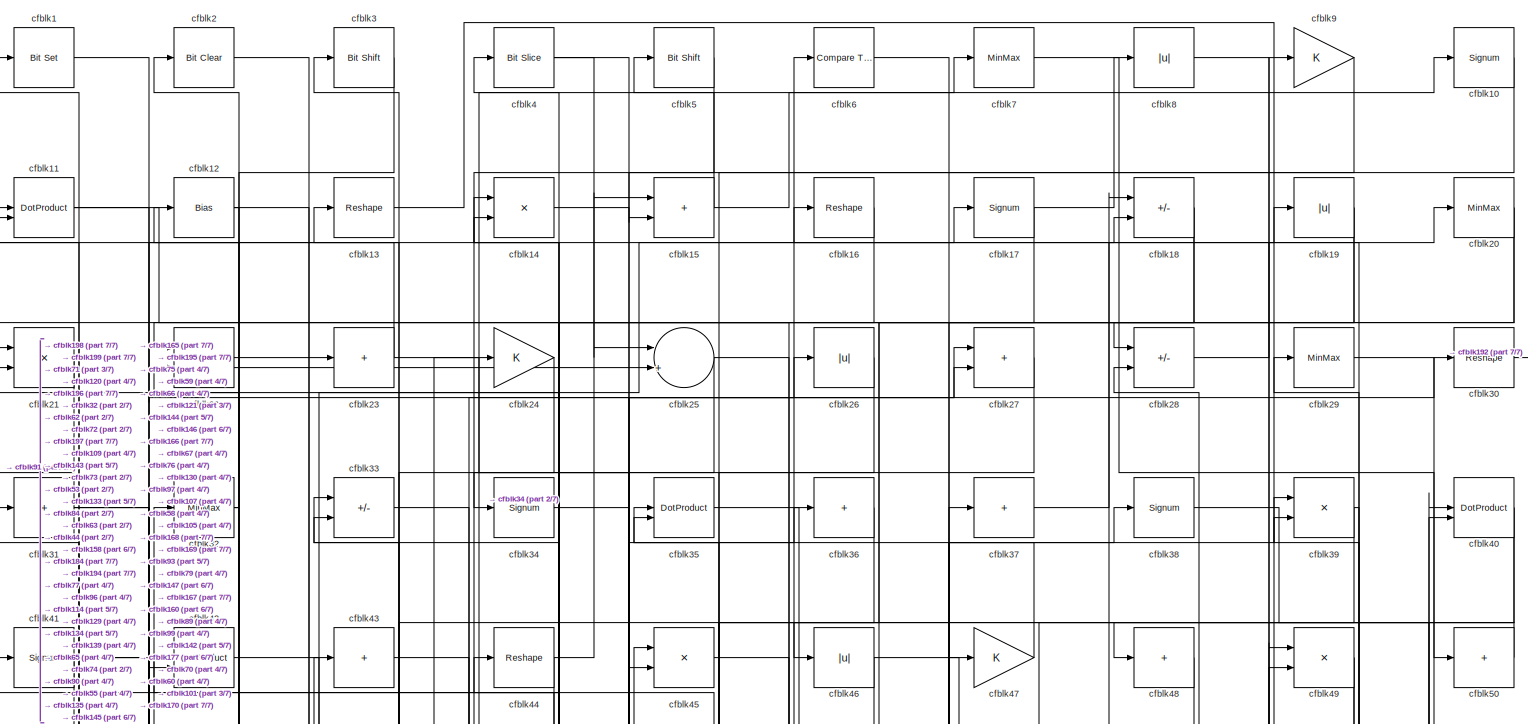
[diagram: root canvas - part 1/7, full width, top band]
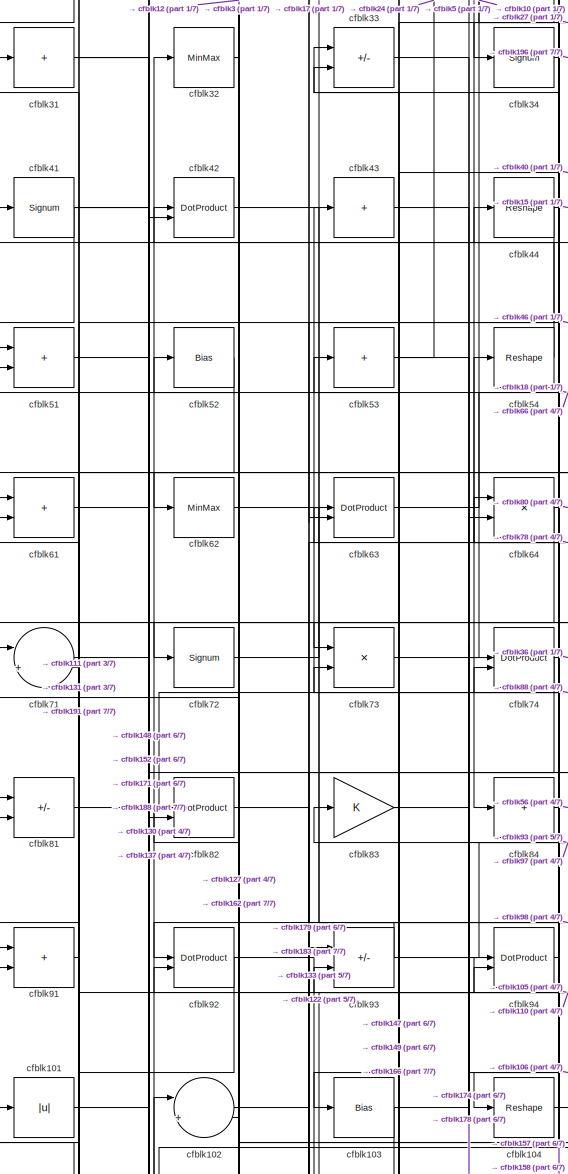
[diagram: root canvas - part 2/7, middle left region]
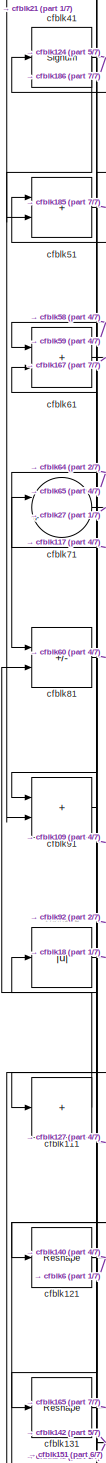
[diagram: root canvas - part 3/7, middle left region]
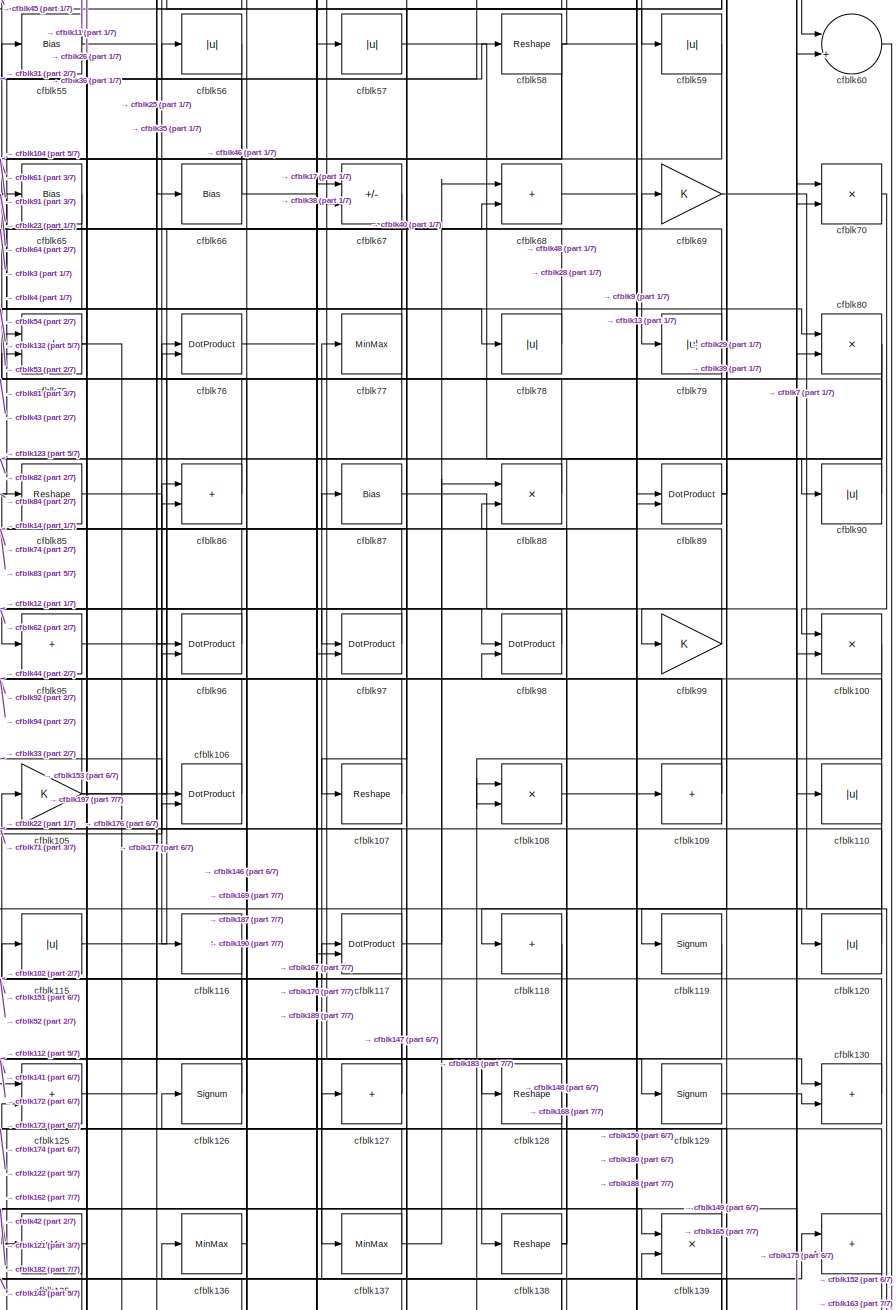
[diagram: root canvas - part 4/7, middle right region]
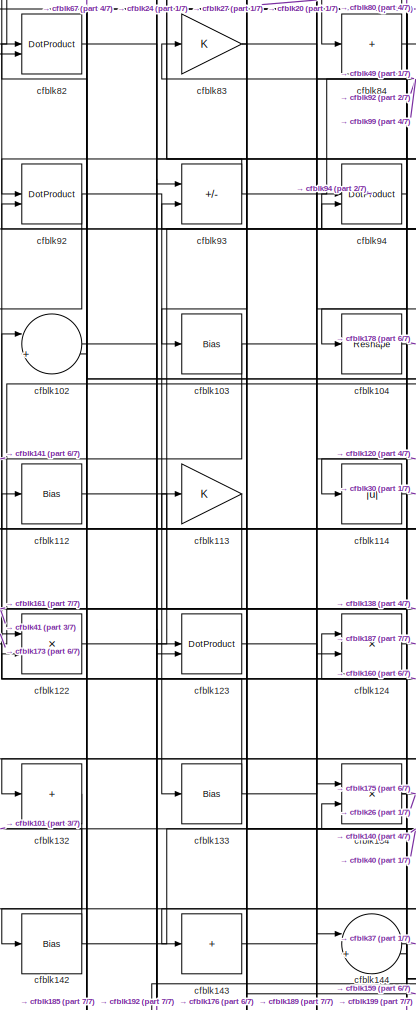
[diagram: root canvas - part 5/7, middle left region]
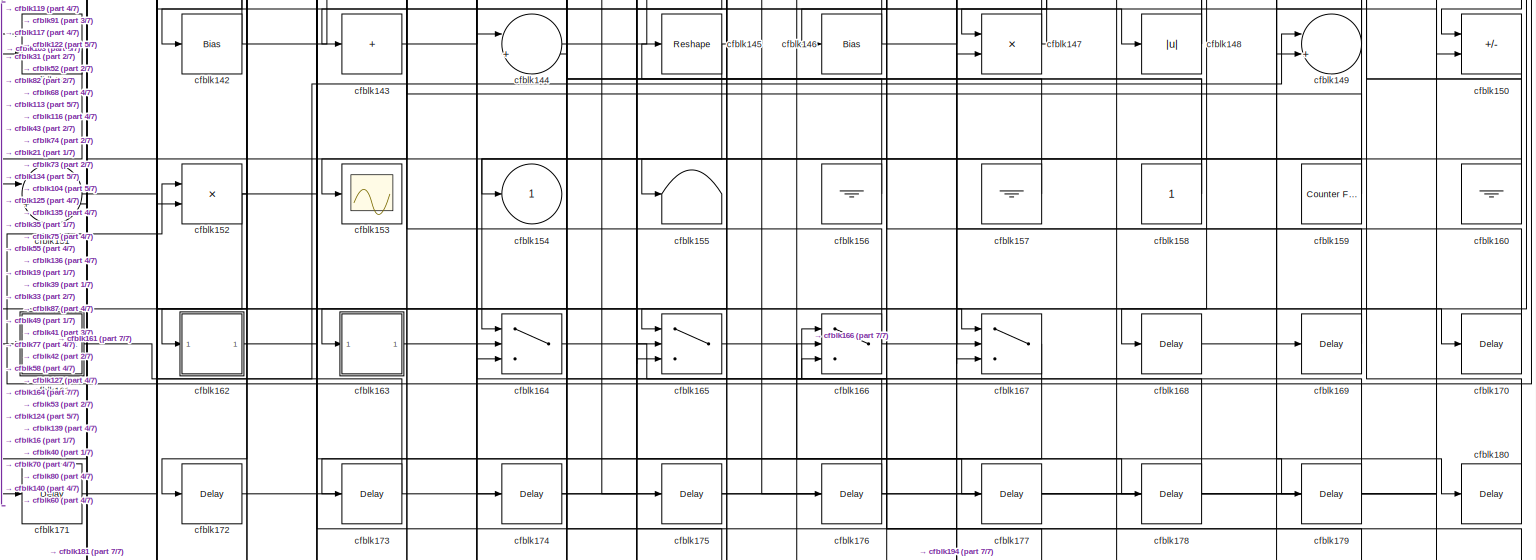
[diagram: root canvas - part 6/7, full width, bottom band]
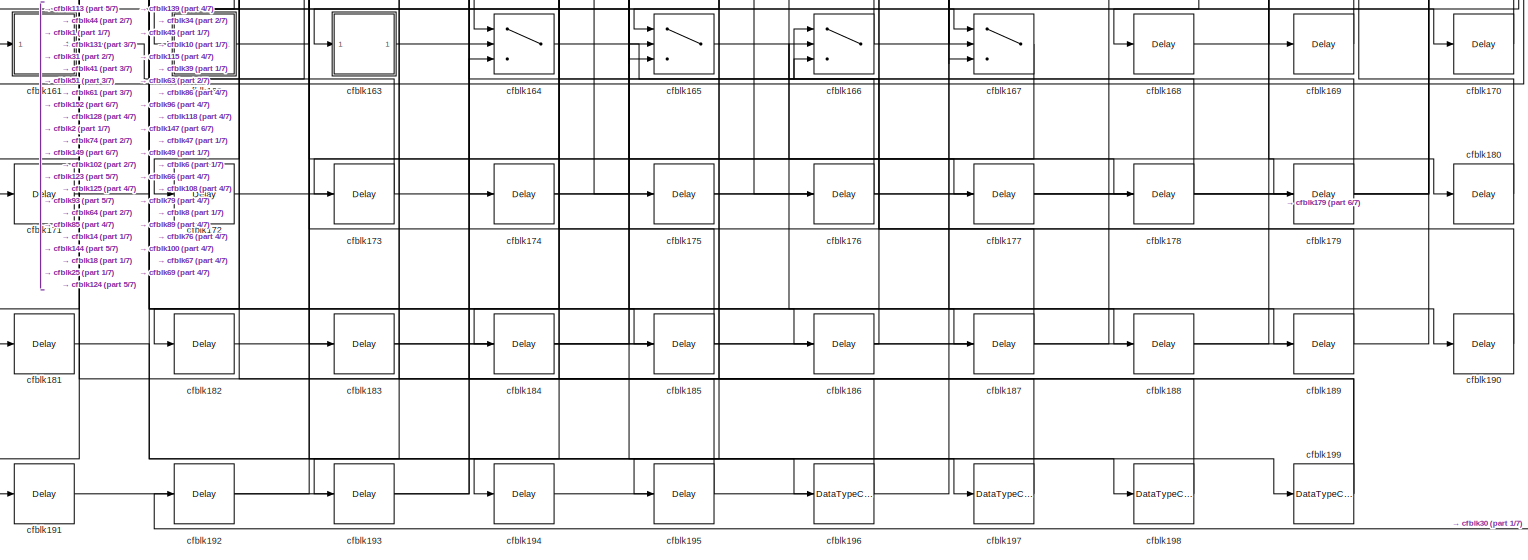
[diagram: root canvas - part 7/7, full width, bottom band]
MODEL slx_b11545c98bc6
KIND model
CONFIG AbsTol = auto
CONFIG EnableMultiTasking = off
CONFIG FixedStep = auto
CONFIG MaxStep = auto
CONFIG MinStep = auto
CONFIG RelTol = 1e-3
CONFIG SampleTimeConstraint = Unconstrained
CONFIG SolverName = VariableStepAuto
CONFIG StartTime = 0.0
CONFIG StopTime = 10.0
BLOCK [Reference] cfblk1  REF=simulink/Logic and Bit
Operations/Bit Set
  LibrarySourceBlock = hdlsllib/Logic and Bit\nOperations/Bit Set
  SourceBlock = simulink/Logic and Bit\nOperations/Bit Set
  SourceType = Bit Set
BLOCK [Signum] cfblk10
BLOCK [Product] cfblk100
  Inputs = */
  RndMeth = Zero
  SaturateOnIntegerOverflow = on
BLOCK [Abs] cfblk101
  SaturateOnIntegerOverflow = off
BLOCK [Sum] cfblk102
  Inputs = |++
BLOCK [Bias] cfblk103
  Bias = 0.0
  SaturateOnIntegerOverflow = off
BLOCK [Reshape] cfblk104
BLOCK [Gain] cfblk105
BLOCK [DotProduct] cfblk106
  OutDataTypeStr = Inherit: Inherit via internal rule
BLOCK [Reshape] cfblk107
BLOCK [Product] cfblk108
  Inputs = */
  RndMeth = Zero
  SaturateOnIntegerOverflow = on
BLOCK [Sum] cfblk109
  IconShape = rectangular
  Inputs = +
BLOCK [DotProduct] cfblk11
  OutDataTypeStr = Inherit: Inherit via internal rule
BLOCK [Abs] cfblk110
  SaturateOnIntegerOverflow = off
BLOCK [Sum] cfblk111
  IconShape = rectangular
  Inputs = +
BLOCK [Bias] cfblk112
  Bias = 0.0
  SaturateOnIntegerOverflow = off
BLOCK [Gain] cfblk113
BLOCK [Abs] cfblk114
  SaturateOnIntegerOverflow = off
BLOCK [Abs] cfblk115
  SaturateOnIntegerOverflow = off
BLOCK [Sum] cfblk116
  IconShape = rectangular
  Inputs = +
BLOCK [DotProduct] cfblk117
  OutDataTypeStr = Inherit: Inherit via internal rule
BLOCK [Sum] cfblk118
  IconShape = rectangular
  Inputs = +
BLOCK [Signum] cfblk119
BLOCK [Bias] cfblk12
  Bias = 0.0
  SaturateOnIntegerOverflow = off
BLOCK [Abs] cfblk120
  SaturateOnIntegerOverflow = off
BLOCK [Reshape] cfblk121
BLOCK [Product] cfblk122
  Inputs = */
  RndMeth = Zero
  SaturateOnIntegerOverflow = on
BLOCK [DotProduct] cfblk123
  OutDataTypeStr = Inherit: Inherit via internal rule
BLOCK [Product] cfblk124
  Inputs = */
  RndMeth = Zero
  SaturateOnIntegerOverflow = on
BLOCK [Sum] cfblk125
  IconShape = rectangular
BLOCK [Signum] cfblk126
BLOCK [Sum] cfblk127
  IconShape = rectangular
  Inputs = +
BLOCK [Reshape] cfblk128
BLOCK [Signum] cfblk129
BLOCK [Reshape] cfblk13
BLOCK [Sum] cfblk130
  IconShape = rectangular
BLOCK [Reshape] cfblk131
BLOCK [Sum] cfblk132
  IconShape = rectangular
  Inputs = +
BLOCK [Bias] cfblk133
  Bias = 0.0
  SaturateOnIntegerOverflow = off
BLOCK [Product] cfblk134
  Inputs = */
  RndMeth = Zero
  SaturateOnIntegerOverflow = on
BLOCK [MinMax] cfblk135
BLOCK [MinMax] cfblk136
BLOCK [MinMax] cfblk137
BLOCK [Reshape] cfblk138
BLOCK [Product] cfblk139
  Inputs = */
  RndMeth = Zero
  SaturateOnIntegerOverflow = on
BLOCK [Product] cfblk14
  Inputs = */
  RndMeth = Zero
  SaturateOnIntegerOverflow = on
BLOCK [Sum] cfblk140
  IconShape = rectangular
BLOCK [Product] cfblk141
  Inputs = */
  RndMeth = Zero
  SaturateOnIntegerOverflow = on
BLOCK [Bias] cfblk142
  Bias = 0.0
  SaturateOnIntegerOverflow = off
BLOCK [Sum] cfblk143
  IconShape = rectangular
  Inputs = +
BLOCK [Sum] cfblk144
  Inputs = |++
BLOCK [Reshape] cfblk145
BLOCK [Bias] cfblk146
  Bias = 0.0
  SaturateOnIntegerOverflow = off
BLOCK [Product] cfblk147
  Inputs = */
  RndMeth = Zero
  SaturateOnIntegerOverflow = on
BLOCK [Abs] cfblk148
  SaturateOnIntegerOverflow = off
BLOCK [Sum] cfblk149
  Inputs = |++
BLOCK [Sum] cfblk15
  IconShape = rectangular
BLOCK [Sum] cfblk150
  IconShape = rectangular
  Inputs = +-
BLOCK [Sum] cfblk151
  Inputs = |++
BLOCK [Product] cfblk152
  Inputs = */
  RndMeth = Zero
  SaturateOnIntegerOverflow = on
BLOCK [Scope] cfblk153
  Floating = off
  NumInputPorts = 1
  ScopeSpecificationString = Simulink.scopes.TimeScopeBlockCfg('CurrentConfiguration', extmgr.ConfigurationSet(extmgr.Configuration('Core','General UI',true),extmgr.Configuration('Core','Source UI',true),extmgr.Configuration('Sources','WiredSimulink',true,'DataLoggingVariableName','ScopeData2','DataLoggingSaveFormat','Array','DataLoggingLimitDataPoints',true,'DataLoggingDecimation','1'),extmgr.Configuration('Visuals','Time Do...<+868ch>
BLOCK [Outport] cfblk154
  VectorParamsAs1DForOutWhenUnconnected = off
BLOCK [Terminator] cfblk155
BLOCK [Ground] cfblk156
BLOCK [Ground] cfblk157
BLOCK [Constant] cfblk158
  SampleTime = -1
BLOCK [Reference] cfblk159  REF=hdlsllib/Sources/Counter
Free-Running
  SourceBlock = hdlsllib/Sources/Counter\nFree-Running
  SourceType = Counter Free-Running
BLOCK [Reshape] cfblk16
BLOCK [Ground] cfblk160
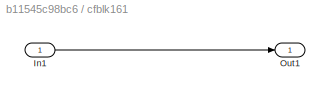
BLOCK [SubSystem] cfblk161
  LibrarySourceBlock = hdlsllib/Ports &\nSubsystems/Subsystem
BLOCK [Inport] cfblk161/In1
BLOCK [Outport] cfblk161/Out1
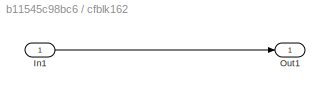
BLOCK [SubSystem] cfblk162
  LibrarySourceBlock = hdlsllib/Ports &\nSubsystems/Subsystem
BLOCK [Inport] cfblk162/In1
BLOCK [Outport] cfblk162/Out1
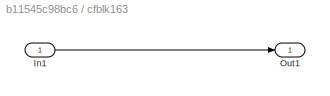
BLOCK [SubSystem] cfblk163
  LibrarySourceBlock = hdlsllib/Ports &\nSubsystems/Subsystem
BLOCK [Inport] cfblk163/In1
BLOCK [Outport] cfblk163/Out1
BLOCK [Switch] cfblk164
  InputSameDT = off
  SaturateOnIntegerOverflow = off
BLOCK [Switch] cfblk165
  InputSameDT = off
  SaturateOnIntegerOverflow = off
BLOCK [Switch] cfblk166
  InputSameDT = off
  SaturateOnIntegerOverflow = off
BLOCK [Switch] cfblk167
  InputSameDT = off
  SaturateOnIntegerOverflow = off
BLOCK [Delay] cfblk168
  InputPortMap = u0
  SampleTime = 1
BLOCK [Delay] cfblk169
  InputPortMap = u0
  SampleTime = 1
BLOCK [Signum] cfblk17
BLOCK [Delay] cfblk170
  InputPortMap = u0
  SampleTime = 1
BLOCK [Delay] cfblk171
  InputPortMap = u0
  SampleTime = 1
BLOCK [Delay] cfblk172
  InputPortMap = u0
  SampleTime = 1
BLOCK [Delay] cfblk173
  InputPortMap = u0
  SampleTime = 1
BLOCK [Delay] cfblk174
  InputPortMap = u0
  SampleTime = 1
BLOCK [Delay] cfblk175
  InputPortMap = u0
  SampleTime = 1
BLOCK [Delay] cfblk176
  InputPortMap = u0
  SampleTime = 1
BLOCK [Delay] cfblk177
  InputPortMap = u0
  SampleTime = 1
BLOCK [Delay] cfblk178
  InputPortMap = u0
  SampleTime = 1
BLOCK [Delay] cfblk179
  InputPortMap = u0
  SampleTime = 1
BLOCK [Sum] cfblk18
  IconShape = rectangular
  Inputs = +-
BLOCK [Delay] cfblk180
  InputPortMap = u0
  SampleTime = 1
BLOCK [Delay] cfblk181
  InputPortMap = u0
  SampleTime = 1
BLOCK [Delay] cfblk182
  InputPortMap = u0
  SampleTime = 1
BLOCK [Delay] cfblk183
  InputPortMap = u0
  SampleTime = 1
BLOCK [Delay] cfblk184
  InputPortMap = u0
  SampleTime = 1
BLOCK [Delay] cfblk185
  InputPortMap = u0
  SampleTime = 1
BLOCK [Delay] cfblk186
  InputPortMap = u0
  SampleTime = 1
BLOCK [Delay] cfblk187
  InputPortMap = u0
  SampleTime = 1
BLOCK [Delay] cfblk188
  InputPortMap = u0
  SampleTime = 1
BLOCK [Delay] cfblk189
  InputPortMap = u0
  SampleTime = 1
BLOCK [Abs] cfblk19
  SaturateOnIntegerOverflow = off
BLOCK [Delay] cfblk190
  InputPortMap = u0
  SampleTime = 1
BLOCK [Delay] cfblk191
  InputPortMap = u0
  SampleTime = 1
BLOCK [Delay] cfblk192
  InputPortMap = u0
  SampleTime = 1
BLOCK [Delay] cfblk193
  InputPortMap = u0
  SampleTime = 1
BLOCK [Delay] cfblk194
  InputPortMap = u0
  SampleTime = 1
BLOCK [Delay] cfblk195
  InputPortMap = u0
  SampleTime = 1
BLOCK [DataTypeConversion] cfblk196
  OutDataTypeStr = boolean
  RndMeth = Floor
  SaturateOnIntegerOverflow = off
BLOCK [DataTypeConversion] cfblk197
  OutDataTypeStr = uint8
  RndMeth = Floor
  SaturateOnIntegerOverflow = off
BLOCK [DataTypeConversion] cfblk198
  OutDataTypeStr = boolean
  RndMeth = Floor
  SaturateOnIntegerOverflow = off
BLOCK [DataTypeConversion] cfblk199
  RndMeth = Floor
  SaturateOnIntegerOverflow = off
BLOCK [Reference] cfblk2  REF=simulink/Logic and Bit
Operations/Bit Clear
  LibrarySourceBlock = hdlsllib/Logic and Bit\nOperations/Bit Clear
  SourceBlock = simulink/Logic and Bit\nOperations/Bit Clear
  SourceType = Bit Clear
BLOCK [MinMax] cfblk20
BLOCK [Product] cfblk21
  Inputs = */
  RndMeth = Zero
  SaturateOnIntegerOverflow = on
BLOCK [Sum] cfblk22
  IconShape = rectangular
BLOCK [Sum] cfblk23
  IconShape = rectangular
  Inputs = +
BLOCK [Gain] cfblk24
BLOCK [Sum] cfblk25
  Inputs = |++
BLOCK [Abs] cfblk26
  SaturateOnIntegerOverflow = off
BLOCK [Sum] cfblk27
  IconShape = rectangular
BLOCK [Sum] cfblk28
  IconShape = rectangular
  Inputs = +-
BLOCK [MinMax] cfblk29
BLOCK [Reference] cfblk3  REF=hdlsllib/Logic and Bit
Operations/Bit Shift
  SourceBlock = hdlsllib/Logic and Bit\nOperations/Bit Shift
  SourceType = Bit Shift
BLOCK [Reshape] cfblk30
BLOCK [Sum] cfblk31
  IconShape = rectangular
  Inputs = +
BLOCK [MinMax] cfblk32
BLOCK [Sum] cfblk33
  IconShape = rectangular
  Inputs = +-
BLOCK [Signum] cfblk34
BLOCK [DotProduct] cfblk35
  OutDataTypeStr = Inherit: Inherit via internal rule
BLOCK [Sum] cfblk36
  IconShape = rectangular
  Inputs = +
BLOCK [Sum] cfblk37
  IconShape = rectangular
  Inputs = +
BLOCK [Signum] cfblk38
BLOCK [Product] cfblk39
  Inputs = */
  RndMeth = Zero
  SaturateOnIntegerOverflow = on
BLOCK [Reference] cfblk4  REF=hdlsllib/Logic and Bit
Operations/Bit Slice
  SourceBlock = hdlsllib/Logic and Bit\nOperations/Bit Slice
  SourceType = Bit Slice
BLOCK [DotProduct] cfblk40
  OutDataTypeStr = Inherit: Inherit via internal rule
BLOCK [Signum] cfblk41
BLOCK [DotProduct] cfblk42
  OutDataTypeStr = Inherit: Inherit via internal rule
BLOCK [Sum] cfblk43
  IconShape = rectangular
  Inputs = +
BLOCK [Reshape] cfblk44
BLOCK [Product] cfblk45
  Inputs = */
  RndMeth = Zero
  SaturateOnIntegerOverflow = on
BLOCK [Abs] cfblk46
  SaturateOnIntegerOverflow = off
BLOCK [Gain] cfblk47
BLOCK [Sum] cfblk48
  IconShape = rectangular
  Inputs = +
BLOCK [Product] cfblk49
  Inputs = */
  RndMeth = Zero
  SaturateOnIntegerOverflow = on
BLOCK [Reference] cfblk5  REF=hdlsllib/Logic and Bit
Operations/Bit Shift
  SourceBlock = hdlsllib/Logic and Bit\nOperations/Bit Shift
  SourceType = Bit Shift
BLOCK [Sum] cfblk50
  IconShape = rectangular
  Inputs = +
BLOCK [Sum] cfblk51
  IconShape = rectangular
BLOCK [Bias] cfblk52
  Bias = 0.0
  SaturateOnIntegerOverflow = off
BLOCK [Sum] cfblk53
  IconShape = rectangular
  Inputs = +
BLOCK [Reshape] cfblk54
BLOCK [Bias] cfblk55
  Bias = 0.0
  SaturateOnIntegerOverflow = off
BLOCK [Abs] cfblk56
  SaturateOnIntegerOverflow = off
BLOCK [Abs] cfblk57
  SaturateOnIntegerOverflow = off
BLOCK [Reshape] cfblk58
BLOCK [Abs] cfblk59
  SaturateOnIntegerOverflow = off
BLOCK [Reference] cfblk6  REF=hdlsllib/Logic and Bit
Operations/Compare
To Constant
  SourceBlock = hdlsllib/Logic and Bit\nOperations/Compare\nTo Constant
  SourceType = Compare To Constant
BLOCK [Sum] cfblk60
  Inputs = |++
BLOCK [Sum] cfblk61
  IconShape = rectangular
BLOCK [MinMax] cfblk62
BLOCK [DotProduct] cfblk63
  OutDataTypeStr = Inherit: Inherit via internal rule
BLOCK [Product] cfblk64
  Inputs = */
  RndMeth = Zero
  SaturateOnIntegerOverflow = on
BLOCK [Bias] cfblk65
  Bias = 0.0
  SaturateOnIntegerOverflow = off
BLOCK [Bias] cfblk66
  Bias = 0.0
  SaturateOnIntegerOverflow = off
BLOCK [Sum] cfblk67
  IconShape = rectangular
  Inputs = +-
BLOCK [Sum] cfblk68
  IconShape = rectangular
BLOCK [Gain] cfblk69
BLOCK [MinMax] cfblk7
BLOCK [Product] cfblk70
  Inputs = */
  RndMeth = Zero
  SaturateOnIntegerOverflow = on
BLOCK [Sum] cfblk71
  Inputs = |++
BLOCK [Signum] cfblk72
BLOCK [Product] cfblk73
  Inputs = */
  RndMeth = Zero
  SaturateOnIntegerOverflow = on
BLOCK [DotProduct] cfblk74
  OutDataTypeStr = Inherit: Inherit via internal rule
BLOCK [Sum] cfblk75
  IconShape = rectangular
  Inputs = +-
BLOCK [DotProduct] cfblk76
  OutDataTypeStr = Inherit: Inherit via internal rule
BLOCK [MinMax] cfblk77
BLOCK [Abs] cfblk78
  SaturateOnIntegerOverflow = off
BLOCK [Abs] cfblk79
  SaturateOnIntegerOverflow = off
BLOCK [Abs] cfblk8
  SaturateOnIntegerOverflow = off
BLOCK [Product] cfblk80
  Inputs = */
  RndMeth = Zero
  SaturateOnIntegerOverflow = on
BLOCK [Sum] cfblk81
  IconShape = rectangular
  Inputs = +-
BLOCK [DotProduct] cfblk82
  OutDataTypeStr = Inherit: Inherit via internal rule
BLOCK [Gain] cfblk83
BLOCK [Sum] cfblk84
  IconShape = rectangular
  Inputs = +
BLOCK [Reshape] cfblk85
BLOCK [Sum] cfblk86
  IconShape = rectangular
BLOCK [Bias] cfblk87
  Bias = 0.0
  SaturateOnIntegerOverflow = off
BLOCK [Product] cfblk88
  Inputs = */
  RndMeth = Zero
  SaturateOnIntegerOverflow = on
BLOCK [DotProduct] cfblk89
  OutDataTypeStr = Inherit: Inherit via internal rule
BLOCK [Gain] cfblk9
BLOCK [Abs] cfblk90
  SaturateOnIntegerOverflow = off
BLOCK [Sum] cfblk91
  IconShape = rectangular
BLOCK [DotProduct] cfblk92
  OutDataTypeStr = Inherit: Inherit via internal rule
BLOCK [Sum] cfblk93
  IconShape = rectangular
  Inputs = +-
BLOCK [DotProduct] cfblk94
  OutDataTypeStr = Inherit: Inherit via internal rule
BLOCK [Sum] cfblk95
  IconShape = rectangular
  Inputs = +
BLOCK [DotProduct] cfblk96
  OutDataTypeStr = Inherit: Inherit via internal rule
BLOCK [DotProduct] cfblk97
  OutDataTypeStr = Inherit: Inherit via internal rule
BLOCK [DotProduct] cfblk98
  OutDataTypeStr = Inherit: Inherit via internal rule
BLOCK [Gain] cfblk99
LINE cfblk100:1 -> cfblk108:2
LINE cfblk101:1 -> cfblk18:2
LINE cfblk102:1 -> cfblk183:1
NET cfblk103:1 -> cfblk134:1, cfblk141:2
LINE cfblk104:1 -> cfblk178:1
NET cfblk105:1 -> cfblk128:1, cfblk92:2, cfblk9:1
LINE cfblk106:1 -> cfblk44:1
LINE cfblk107:1 -> cfblk86:1
LINE cfblk108:1 -> cfblk109:1
NET cfblk109:1 -> cfblk13:1, cfblk61:2
LINE cfblk10:1 -> cfblk195:1
NET cfblk110:1 -> cfblk118:1, cfblk94:2
LINE cfblk111:1 -> cfblk81:2
LINE cfblk112:1 -> cfblk138:1
LINE cfblk113:1 -> cfblk161:1
LINE cfblk114:1 -> cfblk30:1
LINE cfblk115:1 -> cfblk69:1
LINE cfblk116:1 -> cfblk173:1
NET cfblk117:1 -> cfblk172:1, cfblk71:1, cfblk88:1
NET cfblk118:1 -> cfblk137:1, cfblk167:3
LINE cfblk119:1 -> cfblk141:1
NET cfblk11:1 -> cfblk25:2, cfblk96:1
LINE cfblk120:1 -> cfblk22:2
NET cfblk121:1 -> cfblk140:2, cfblk6:1
LINE cfblk122:1 -> cfblk94:1
LINE cfblk123:1 -> cfblk144:1
LINE cfblk124:1 -> cfblk187:1
LINE cfblk125:1 -> cfblk58:1
LINE cfblk126:1 -> cfblk105:1
NET cfblk127:1 -> cfblk52:1, cfblk71:2
LINE cfblk128:1 -> cfblk182:1
LINE cfblk129:1 -> cfblk130:2
NET cfblk12:1 -> cfblk62:1, cfblk97:2
LINE cfblk130:1 -> cfblk102:1
NET cfblk131:1 -> cfblk165:3, cfblk51:1
LINE cfblk132:1 -> cfblk142:1
NET cfblk133:1 -> cfblk112:1, cfblk27:2
NET cfblk134:1 -> cfblk175:1, cfblk26:1
NET cfblk135:1 -> cfblk153:1, cfblk75:2
LINE cfblk136:1 -> cfblk106:2
NET cfblk137:1 -> cfblk42:1, cfblk68:1
NET cfblk138:1 -> cfblk88:2, cfblk98:2
NET cfblk139:1 -> cfblk126:1, cfblk165:2
LINE cfblk13:1 -> cfblk79:1
NET cfblk140:1 -> cfblk122:2, cfblk150:1
LINE cfblk141:1 -> cfblk151:1
NET cfblk142:1 -> cfblk101:1, cfblk40:1
LINE cfblk143:1 -> cfblk140:1
LINE cfblk144:1 -> cfblk37:1
NET cfblk145:1 -> cfblk155:1, cfblk35:2
NET cfblk146:1 -> cfblk136:1, cfblk39:1
NET cfblk147:1 -> cfblk33:2, cfblk87:1
NET cfblk148:1 -> cfblk41:1, cfblk77:1
NET cfblk149:1 -> cfblk127:1, cfblk164:1, cfblk53:1
LINE cfblk14:1 -> cfblk139:1
LINE cfblk150:1 -> cfblk171:1
LINE cfblk151:1 -> cfblk117:1
NET cfblk152:1 -> cfblk181:1, cfblk68:2, cfblk82:1
LINE cfblk156:1 -> cfblk145:1
LINE cfblk157:1 -> cfblk33:1
NET cfblk158:1 -> cfblk21:1, cfblk73:2
NET cfblk159:1 -> cfblk113:1, cfblk154:1
NET cfblk15:1 -> cfblk5:1, cfblk7:1
NET cfblk160:1 -> cfblk124:1, cfblk16:1
LINE cfblk161/In1:1 -> cfblk161/Out1:1
LINE cfblk161:1 -> cfblk149:1
LINE cfblk162/In1:1 -> cfblk162/Out1:1
LINE cfblk162:1 -> cfblk125:2
LINE cfblk163/In1:1 -> cfblk163/Out1:1
LINE cfblk163:1 -> cfblk85:1
LINE cfblk164:1 -> cfblk166:1
LINE cfblk165:1 -> cfblk190:1
NET cfblk166:1 -> cfblk47:1, cfblk63:1
LINE cfblk167:1 -> cfblk193:1
LINE cfblk168:1 -> cfblk49:2
LINE cfblk169:1 -> cfblk76:2
LINE cfblk16:1 -> cfblk22:1
LINE cfblk170:1 -> cfblk67:1
LINE cfblk171:1 -> cfblk42:2
LINE cfblk172:1 -> cfblk80:2
LINE cfblk173:1 -> cfblk122:1
LINE cfblk174:1 -> cfblk125:1
LINE cfblk175:1 -> cfblk70:1
LINE cfblk176:1 -> cfblk134:2
LINE cfblk177:1 -> cfblk40:2
LINE cfblk178:1 -> cfblk74:1
LINE cfblk179:1 -> cfblk166:2
NET cfblk17:1 -> cfblk67:2, cfblk8:1
LINE cfblk180:1 -> cfblk139:2
LINE cfblk181:1 -> cfblk198:1
LINE cfblk182:1 -> cfblk100:2
LINE cfblk183:1 -> cfblk108:1
LINE cfblk184:1 -> cfblk45:2
LINE cfblk185:1 -> cfblk123:1
LINE cfblk186:1 -> cfblk166:3
LINE cfblk187:1 -> cfblk86:2
LINE cfblk188:1 -> cfblk89:2
LINE cfblk189:1 -> cfblk144:2
NET cfblk18:1 -> cfblk194:1, cfblk46:1
LINE cfblk190:1 -> cfblk96:2
LINE cfblk191:1 -> cfblk64:2
LINE cfblk192:1 -> cfblk93:1
LINE cfblk193:1 -> cfblk164:3
LINE cfblk194:1 -> cfblk147:2
LINE cfblk195:1 -> cfblk164:2
LINE cfblk196:1 -> cfblk2:1
LINE cfblk197:1 -> cfblk115:1
LINE cfblk198:1 -> cfblk1:1
NET cfblk199:1 -> cfblk14:2, cfblk93:2
NET cfblk19:1 -> cfblk146:1, cfblk28:1
LINE cfblk1:1 -> cfblk199:1
NET cfblk20:1 -> cfblk114:1, cfblk21:2
LINE cfblk21:1 -> cfblk91:2
LINE cfblk22:1 -> cfblk23:1
NET cfblk23:1 -> cfblk11:1, cfblk65:1
LINE cfblk24:1 -> cfblk143:1
NET cfblk25:1 -> cfblk184:1, cfblk59:1
LINE cfblk26:1 -> cfblk75:1
LINE cfblk27:1 -> cfblk34:1
LINE cfblk28:1 -> cfblk20:1
LINE cfblk29:1 -> cfblk50:1
LINE cfblk2:1 -> cfblk197:1
LINE cfblk30:1 -> cfblk192:1
NET cfblk31:1 -> cfblk148:1, cfblk188:1
NET cfblk32:1 -> cfblk102:2, cfblk12:1
LINE cfblk33:1 -> cfblk106:1
LINE cfblk34:1 -> cfblk196:1
LINE cfblk35:1 -> cfblk89:1
LINE cfblk36:1 -> cfblk135:1
LINE cfblk37:1 -> cfblk19:1
LINE cfblk38:1 -> cfblk70:2
NET cfblk39:1 -> cfblk165:1, cfblk99:1
LINE cfblk3:1 -> cfblk72:1
NET cfblk40:1 -> cfblk73:1, cfblk97:1
NET cfblk41:1 -> cfblk124:2, cfblk186:1, cfblk51:2
LINE cfblk42:1 -> cfblk149:2
LINE cfblk43:1 -> cfblk174:1
NET cfblk44:1 -> cfblk15:1, cfblk191:1
LINE cfblk45:1 -> cfblk66:1
NET cfblk46:1 -> cfblk130:1, cfblk63:2
LINE cfblk47:1 -> cfblk35:1
LINE cfblk48:1 -> cfblk107:1
NET cfblk49:1 -> cfblk147:1, cfblk167:2
NET cfblk4:1 -> cfblk129:1, cfblk25:1
LINE cfblk50:1 -> cfblk48:1
LINE cfblk51:1 -> cfblk185:1
LINE cfblk52:1 -> cfblk152:2
NET cfblk53:1 -> cfblk24:1, cfblk78:1
LINE cfblk54:1 -> cfblk32:1
NET cfblk55:1 -> cfblk11:2, cfblk177:1
LINE cfblk56:1 -> cfblk104:1
LINE cfblk57:1 -> cfblk90:1
NET cfblk58:1 -> cfblk121:1, cfblk150:2, cfblk28:2, cfblk61:1
LINE cfblk59:1 -> cfblk91:1
LINE cfblk5:1 -> cfblk84:1
LINE cfblk60:1 -> cfblk152:1
LINE cfblk61:1 -> cfblk167:1
LINE cfblk62:1 -> cfblk98:1
LINE cfblk63:1 -> cfblk10:1
NET cfblk64:1 -> cfblk131:1, cfblk80:1
LINE cfblk65:1 -> cfblk81:1
NET cfblk66:1 -> cfblk189:1, cfblk31:1
LINE cfblk67:1 -> cfblk132:1
LINE cfblk68:1 -> cfblk180:1
LINE cfblk69:1 -> cfblk163:1
LINE cfblk6:1 -> cfblk170:1
LINE cfblk70:1 -> cfblk100:1
LINE cfblk71:1 -> cfblk27:1
LINE cfblk72:1 -> cfblk17:1
LINE cfblk73:1 -> cfblk18:1
NET cfblk74:1 -> cfblk162:1, cfblk36:1
NET cfblk75:1 -> cfblk176:1, cfblk55:1
LINE cfblk76:1 -> cfblk38:1
NET cfblk77:1 -> cfblk117:2, cfblk4:1
LINE cfblk78:1 -> cfblk54:1
NET cfblk79:1 -> cfblk168:1, cfblk3:1
LINE cfblk7:1 -> cfblk60:1
NET cfblk80:1 -> cfblk119:1, cfblk123:2, cfblk82:2
LINE cfblk81:1 -> cfblk60:2
LINE cfblk82:1 -> cfblk179:1
NET cfblk83:1 -> cfblk103:1, cfblk120:1
LINE cfblk84:1 -> cfblk56:1
LINE cfblk85:1 -> cfblk116:1
LINE cfblk86:1 -> cfblk76:1
LINE cfblk87:1 -> cfblk110:1
LINE cfblk88:1 -> cfblk43:1
NET cfblk89:1 -> cfblk29:1, cfblk39:2
LINE cfblk8:1 -> cfblk169:1
LINE cfblk90:1 -> cfblk45:1
LINE cfblk91:1 -> cfblk151:2
NET cfblk92:1 -> cfblk111:1, cfblk133:1
NET cfblk93:1 -> cfblk49:1, cfblk92:1
LINE cfblk94:1 -> cfblk64:1
LINE cfblk95:1 -> cfblk57:1
LINE cfblk96:1 -> cfblk14:1
LINE cfblk97:1 -> cfblk74:2
LINE cfblk98:1 -> cfblk95:1
LINE cfblk99:1 -> cfblk83:1
LINE cfblk9:1 -> cfblk15:2
note: NET lines group one-source signal fan-out (src -> all destinations, sorted); 1:1 wires keep LINE
